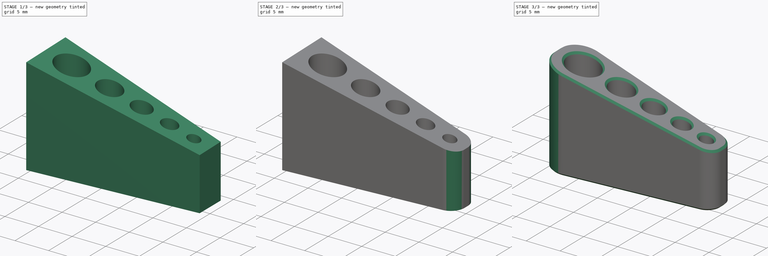
[diagram: build sequence overview — one tinted view per stage of 3, left to right]
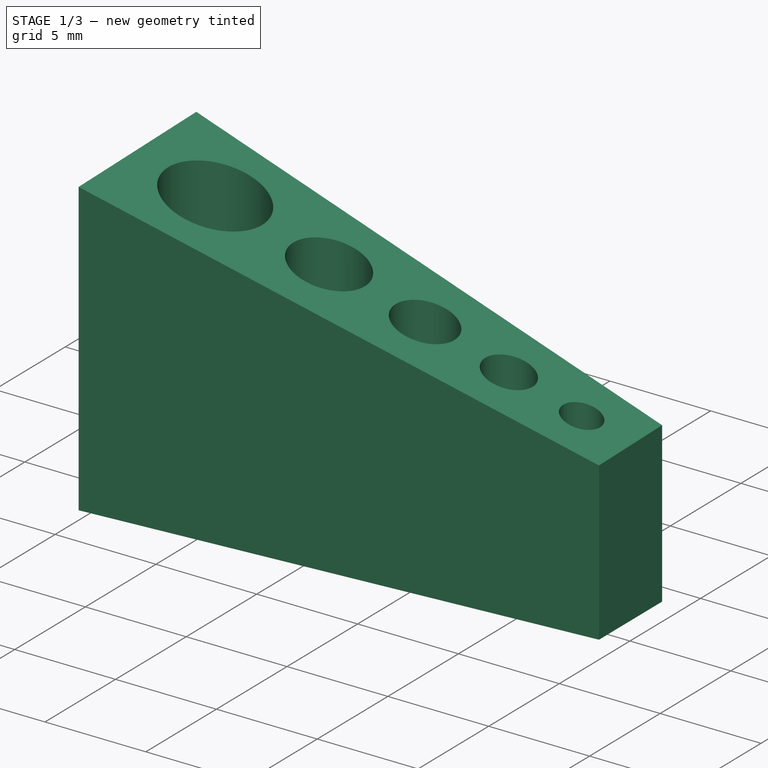
[diagram: stage 1 of 3 — iso view after this stage's code; geometry added in this stage tinted green]
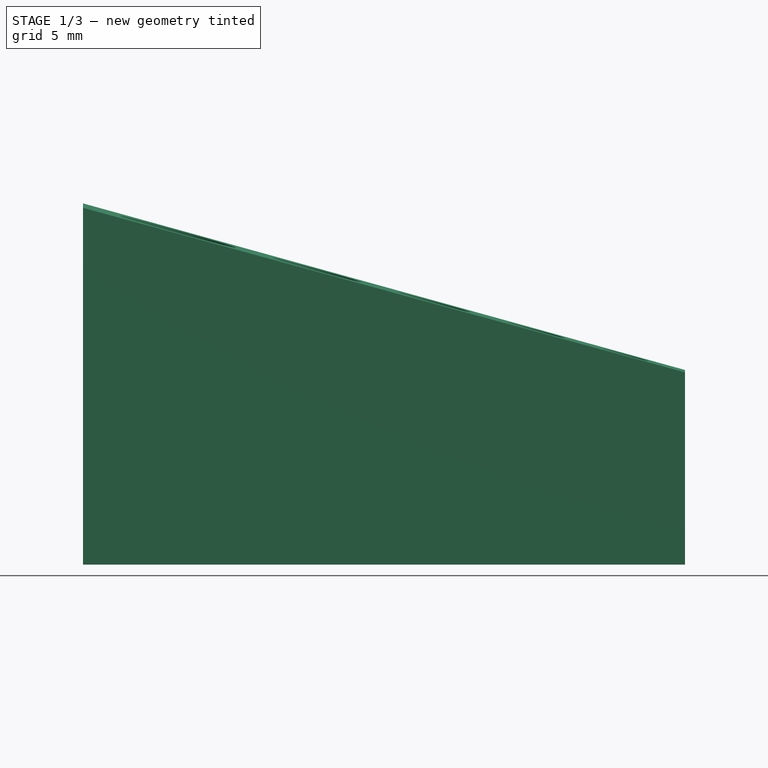
[diagram: stage 1 of 3 — front view after this stage's code; geometry added in this stage tinted green]
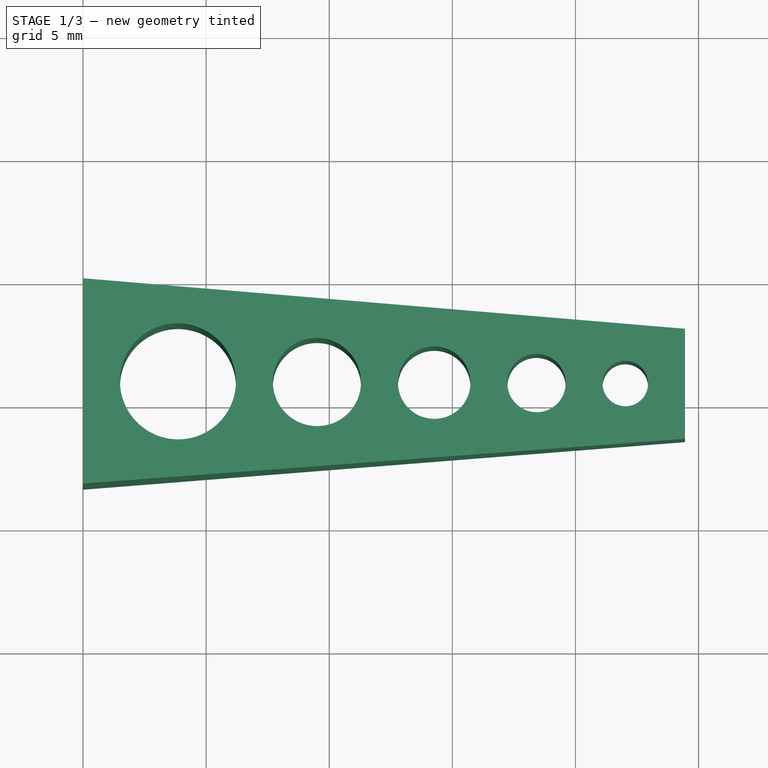
[diagram: stage 1 of 3 — top view after this stage's code; geometry added in this stage tinted green]
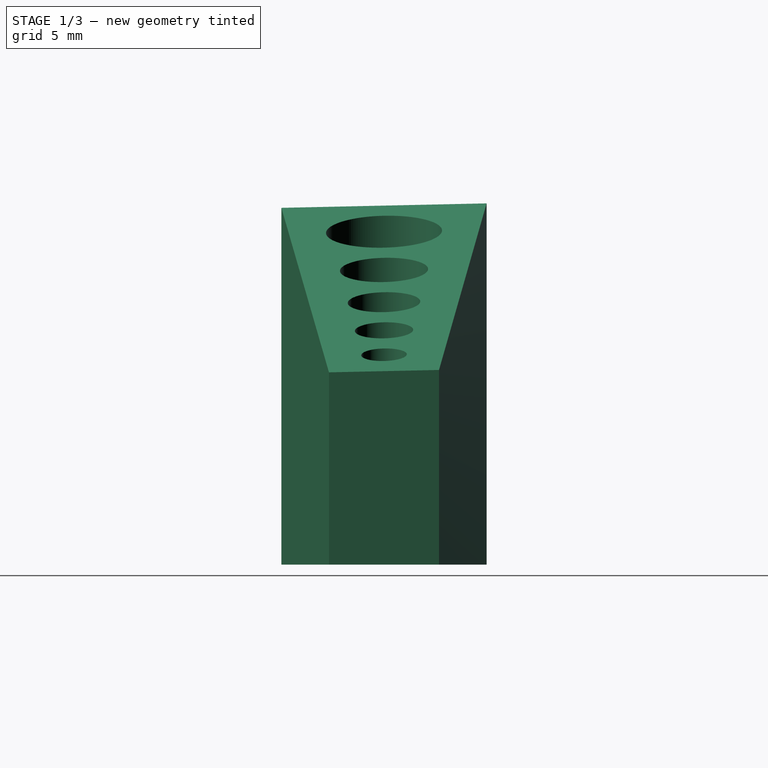
[diagram: stage 1 of 3 — right view after this stage's code; geometry added in this stage tinted green]
FCSTD DOCUMENT  (FreeCAD 0.20R29410 (Git))
Label: allen-wrench-holder
License: All rights reserved
LicenseURL: http://en.wikipedia.org/wiki/All_rights_reserved
objects: Sketcher::SketchObject×2, PartDesign::Plane×2, PartDesign::Fillet×2, PartDesign::Pad×1, PartDesign::Pocket×1, PartDesign::Chamfer×1, PartDesign::Body×1
note: 15 computed .brp shape members not serialized (recipe doc carries the construction recipe); baked Part::Feature solids carry a one-line shape summary decoded from their .brp

FEATURE [Sketcher::SketchObject] Sketch001
  FullyConstrained = true
  MapMode = 5
  Support = -> [XY_Plane]
  sketch-geometry (57):
    g0: LineSegment StartX=33.7491 StartY=-4.1677 StartZ=0 EndX=0 EndY=-4.1677 EndZ=0
    g1: Circle CenterX=3.85559 CenterY=-4.1677 CenterZ=0 NormalX=0 NormalY=0 NormalZ=1 AngleXU=0 Radius=2.35559
    g2: Circle CenterX=9.50096 CenterY=-4.1677 CenterZ=0 NormalX=0 NormalY=0 NormalZ=1 AngleXU=0 Radius=1.78979
    g3: Circle CenterX=14.263 CenterY=-4.1677 CenterZ=0 NormalX=0 NormalY=0 NormalZ=1 AngleXU=0 Radius=1.47224
    g4: Circle CenterX=18.4188 CenterY=-4.1677 CenterZ=0 NormalX=0 NormalY=0 NormalZ=1 AngleXU=0 Radius=1.18357
    g5: Circle CenterX=22.0261 CenterY=-4.1677 CenterZ=0 NormalX=0 NormalY=0 NormalZ=1 AngleXU=0 Radius=0.92376
    g6: LineSegment StartX=0 StartY=-6.83541 StartZ=0 EndX=33.7491 EndY=-4.1677 EndZ=0
    g7: GeomPoint X=6.21118 Y=-4.1677 Z=0
    g8: GeomPoint X=7.71118 Y=-4.1677 Z=0
    g9: GeomPoint X=1.5 Y=-4.1677 Z=0
    g10: GeomPoint X=11.2907 Y=-4.1677 Z=0
    g11: GeomPoint X=12.7907 Y=-4.1677 Z=0
    g12: GeomPoint X=15.7352 Y=-4.1677 Z=0
    g13: GeomPoint X=17.2352 Y=-4.1677 Z=0
    g14: GeomPoint X=19.6024 Y=-4.1677 Z=0
    g15: GeomPoint X=21.1024 Y=-4.1677 Z=0
    g16: GeomPoint X=22.9499 Y=-4.1677 Z=0
    g17: LineSegment StartX=0 StartY=-8.33541 StartZ=0 EndX=24.4499 EndY=-6.40276 EndZ=0
    g18: LineSegment StartX=0 StartY=0 StartZ=0 EndX=24.4499 EndY=-1.93265 EndZ=0
    g19: LineSegment StartX=24.4499 StartY=-6.40276 StartZ=0 EndX=24.4499 EndY=-1.93265 EndZ=0
    g20: GeomPoint X=24.4499 Y=-4.1677 Z=0
    g21: LineSegment StartX=0 StartY=-8.33541 StartZ=0 EndX=0 EndY=0 EndZ=0
    g22: LineSegment StartX=5.03338 StartY=-2.1277 StartZ=0 EndX=2.67779 EndY=-2.1277 EndZ=0
    g23: LineSegment StartX=2.67779 StartY=-2.1277 StartZ=0 EndX=1.5 EndY=-4.1677 EndZ=0
    g24: LineSegment StartX=1.5 StartY=-4.1677 StartZ=0 EndX=2.67779 EndY=-6.2077 EndZ=0
    g25: LineSegment StartX=2.67779 StartY=-6.2077 StartZ=0 EndX=5.03338 EndY=-6.2077 EndZ=0
    g26: LineSegment StartX=5.03338 StartY=-6.2077 StartZ=0 EndX=6.21118 EndY=-4.1677 EndZ=0
    g27: LineSegment StartX=6.21118 StartY=-4.1677 StartZ=0 EndX=5.03338 EndY=-2.1277 EndZ=0
    g28: Circle CenterX=3.85559 CenterY=-4.1677 CenterZ=0 NormalX=0 NormalY=0 NormalZ=1 AngleXU=0 Radius=2.35559
    g29: LineSegment StartX=8.60607 StartY=-2.6177 StartZ=0 EndX=7.71118 EndY=-4.1677 EndZ=0
    g30: LineSegment StartX=7.71118 StartY=-4.1677 StartZ=0 EndX=8.60607 EndY=-5.7177 EndZ=0
    g31: LineSegment StartX=8.60607 StartY=-5.7177 StartZ=0 EndX=10.3959 EndY=-5.7177 EndZ=0
    g32: LineSegment StartX=10.3959 StartY=-5.7177 StartZ=0 EndX=11.2907 EndY=-4.1677 EndZ=0
    g33: LineSegment StartX=11.2907 StartY=-4.1677 StartZ=0 EndX=10.3959 EndY=-2.6177 EndZ=0
    g34: LineSegment StartX=10.3959 StartY=-2.6177 StartZ=0 EndX=8.60607 EndY=-2.6177 EndZ=0
    g35: Circle CenterX=9.50096 CenterY=-4.1677 CenterZ=0 NormalX=0 NormalY=0 NormalZ=1 AngleXU=0 Radius=1.78979
    g36: LineSegment StartX=13.5269 StartY=-2.8927 StartZ=0 EndX=12.7907 EndY=-4.1677 EndZ=0
    g37: LineSegment StartX=12.7907 StartY=-4.1677 StartZ=0 EndX=13.5269 EndY=-5.4427 EndZ=0
    g38: LineSegment StartX=13.5269 StartY=-5.4427 StartZ=0 EndX=14.9991 EndY=-5.4427 EndZ=0
    g39: LineSegment StartX=14.9991 StartY=-5.4427 StartZ=0 EndX=15.7352 EndY=-4.1677 EndZ=0
    g40: LineSegment StartX=15.7352 StartY=-4.1677 StartZ=0 EndX=14.9991 EndY=-2.8927 EndZ=0
    g41: LineSegment StartX=14.9991 StartY=-2.8927 StartZ=0 EndX=13.5269 EndY=-2.8927 EndZ=0
    g42: Circle CenterX=14.263 CenterY=-4.1677 CenterZ=0 NormalX=0 NormalY=0 NormalZ=1 AngleXU=0 Radius=1.47224
    g43: LineSegment StartX=17.827 StartY=-3.1427 StartZ=0 EndX=17.2352 EndY=-4.1677 EndZ=0
    g44: LineSegment StartX=17.2352 StartY=-4.1677 StartZ=0 EndX=17.827 EndY=-5.1927 EndZ=0
    g45: LineSegment StartX=17.827 StartY=-5.1927 StartZ=0 EndX=19.0106 EndY=-5.1927 EndZ=0
    g46: LineSegment StartX=19.0106 StartY=-5.1927 StartZ=0 EndX=19.6024 EndY=-4.1677 EndZ=0
    g47: LineSegment StartX=19.6024 StartY=-4.1677 StartZ=0 EndX=19.0106 EndY=-3.1427 EndZ=0
    g48: LineSegment StartX=19.0106 StartY=-3.1427 StartZ=0 EndX=17.827 EndY=-3.1427 EndZ=0
    g49: Circle CenterX=18.4188 CenterY=-4.1677 CenterZ=0 NormalX=0 NormalY=0 NormalZ=1 AngleXU=0 Radius=1.18357
    g50: LineSegment StartX=21.5643 StartY=-3.3677 StartZ=0 EndX=21.1024 EndY=-4.1677 EndZ=0
    g51: LineSegment StartX=21.1024 StartY=-4.1677 StartZ=0 EndX=21.5643 EndY=-4.9677 EndZ=0
    g52: LineSegment StartX=21.5643 StartY=-4.9677 StartZ=0 EndX=22.488 EndY=-4.9677 EndZ=0
    g53: LineSegment StartX=22.488 StartY=-4.9677 StartZ=0 EndX=22.9499 EndY=-4.1677 EndZ=0
    g54: LineSegment StartX=22.9499 StartY=-4.1677 StartZ=0 EndX=22.488 EndY=-3.3677 EndZ=0
    g55: LineSegment StartX=22.488 StartY=-3.3677 StartZ=0 EndX=21.5643 EndY=-3.3677 EndZ=0
    g56: Circle CenterX=22.0261 CenterY=-4.1677 CenterZ=0 NormalX=0 NormalY=0 NormalZ=1 AngleXU=0 Radius=0.92376
  constraints (139):
    c: Horizontal(g0)
    c: PointOnObject(g0,g-2)
    c: PointOnObject(g1,g0)
    c: PointOnObject(g3,g0)
    c: PointOnObject(g4,g0)
    c: PointOnObject(g5,g0)
    c: Diameter(g1) = 4.71118
    c: Diameter(g2) = 3.57957
    c: Diameter(g3) = 2.94449
    c: Diameter(g4) = 2.36714
    c: Diameter(g5) = 1.84752
    c: PointOnObject(g6,g-2)
    c: Tangent(g1,g6)
    c: PointOnObject(g7,g0)
    c: PointOnObject(g8,g0)
    c: PointOnObject(g7,g1)
    c: PointOnObject(g8,g2)
    c: PointOnObject(g9,g0)
    c: PointOnObject(g9,g1)
    c: PointOnObject(g10,g0)
    c: PointOnObject(g10,g2)
    c: PointOnObject(g11,g0)
    c: PointOnObject(g11,g3)
    c: PointOnObject(g12,g0)
    c: PointOnObject(g12,g3)
    c: PointOnObject(g13,g0)
    c: PointOnObject(g14,g0)
    c: PointOnObject(g14,g4)
    c: PointOnObject(g13,g4)
    c: PointOnObject(g15,g0)
    c: PointOnObject(g16,g0)
    c: PointOnObject(g15,g5)
    c: PointOnObject(g16,g5)
    c: DistanceX(g7,g8) = 1.5
    c: DistanceX(g10,g11) = 1.5
    c: DistanceX(g12,g13) = 1.5
    c: DistanceX(g14,g15) = 1.5
    c: Tangent(g6,g5)
    c: Parallel(g6,g17)
    c: PointOnObject(g2,g0)
    c: DistanceY(g17,g6) = 1.5
    c: Symmetric(g18,g17,g0)
    c: DistanceX(g0,g9) = 1.5
    c: PointOnObject(g20,g19)
    c: PointOnObject(g20,g0)
    c: DistanceX(g16,g20) = 1.5
    c: Coincident(g18,g19)
    c: Coincident(g17,g19)
    c: Symmetric(g18,g17,g0)
    c: Coincident(g21,g17)
    c: Coincident(g21,g18)
    c: Coincident(g18,g-1)
    c: Coincident(g0,g6)
    c: Coincident(g22,g23)
    c: Coincident(g23,g24)
    c: Coincident(g24,g25)
    c: Coincident(g25,g26)
    c: Coincident(g26,g27)
    c: Coincident(g27,g22)
    c: Equal(g22, g23-g27) x5
    c: PointOnObject(g22,g28)
    c: PointOnObject(g23,g28)
    c: PointOnObject(g24,g28)
    c: PointOnObject(g25,g28)
    c: PointOnObject(g26,g28)
    c: PointOnObject(g27,g28)
    c: Coincident(g28,g1)
    c: PointOnObject(g27,g1)
    c: Horizontal(g22)
    c: DistanceY(g25,g22) = 4.08
    c: Coincident(g29,g30)
    c: Coincident(g30,g31)
    c: Coincident(g31,g32)
    c: Coincident(g32,g33)
    c: Coincident(g33,g34)
    c: Coincident(g34,g29)
    c: Equal(g29, g30-g34) x5
    c: PointOnObject(g29,g35)
    c: PointOnObject(g30,g35)
    c: PointOnObject(g31,g35)
    c: PointOnObject(g32,g35)
    c: PointOnObject(g33,g35)
    c: PointOnObject(g34,g35)
    c: Coincident(g35,g2)
    c: PointOnObject(g34,g2)
    c: Horizontal(g34)
    c: DistanceY(g31,g33) = 3.1
    c: Coincident(g36,g37)
    c: Coincident(g37,g38)
    c: Coincident(g38,g39)
    c: Coincident(g39,g40)
    c: Coincident(g40,g41)
    c: Coincident(g41,g36)
    c: Equal(g36, g37-g41) x5
    c: PointOnObject(g36,g42)
    c: PointOnObject(g37,g42)
    c: PointOnObject(g38,g42)
    c: PointOnObject(g39,g42)
    c: PointOnObject(g40,g42)
    c: PointOnObject(g41,g42)
    c: Coincident(g42,g3)
    c: PointOnObject(g41,g3)
    c: Horizontal(g41)
    c: DistanceY(g38,g40) = 2.55
    c: Coincident(g43,g44)
    c: Coincident(g44,g45)
    c: Coincident(g45,g46)
    c: Coincident(g46,g47)
    c: Coincident(g47,g48)
    c: Coincident(g48,g43)
    c: Equal(g43, g44-g48) x5
    c: PointOnObject(g43,g49)
    c: PointOnObject(g44,g49)
    c: PointOnObject(g45,g49)
    c: PointOnObject(g46,g49)
    c: PointOnObject(g47,g49)
    c: PointOnObject(g48,g49)
    c: Coincident(g49,g4)
    c: PointOnObject(g48,g4)
    c: Horizontal(g48)
    c: DistanceY(g45,g47) = 2.05
    c: Coincident(g50,g51)
    c: Coincident(g51,g52)
    c: Coincident(g52,g53)
    c: Coincident(g53,g54)
    c: Coincident(g54,g55)
    c: Coincident(g55,g50)
    c: Equal(g50, g51-g55) x5
    c: PointOnObject(g50,g56)
    c: PointOnObject(g51,g56)
    c: PointOnObject(g52,g56)
    c: PointOnObject(g53,g56)
    c: PointOnObject(g54,g56)
    c: PointOnObject(g55,g56)
    c: Coincident(g56,g5)
    c: PointOnObject(g55,g5)
    c: Horizontal(g55)
    c: DistanceY(g52,g54) = 1.6
    c: DistanceX(g18,g18) = 24.4499
FEATURE [PartDesign::Pad] Pad
  Direction = (0,0,1)
  Length = 15
  Length2 = 100
  Profile = -> Sketch001
  Type = 0
FEATURE [PartDesign::Plane] DatumPlane
  Length = 64.156
  MapMode = 5
  Placement = pos=(0,0,0) rot=(0.027892,0.706832,0.706832;3.08582rad)
  ResizeMode = 0
  Support = -> [Pad]
  Width = 60.3715
FEATURE [Sketcher::SketchObject] Sketch002
  FullyConstrained = true
  MapMode = 5
  Placement = pos=(0,0,0) rot=(0.027892,0.706832,0.706832;3.08582rad)
  Support = -> [DatumPlane]
  sketch-geometry (3):
    g0: LineSegment StartX=-26 StartY=15.5 StartZ=0 EndX=-26 EndY=7.5 EndZ=0
    g1: LineSegment StartX=-26 StartY=7.5 StartZ=0 EndX=3 EndY=15.5 EndZ=0
    g2: LineSegment StartX=3 StartY=15.5 StartZ=0 EndX=-26 EndY=15.5 EndZ=0
  constraints (9):
    c: Coincident(g0,g1)
    c: Coincident(g1,g2)
    c: Coincident(g2,g0)
    c: Perpendicular(g0,g2)
    c: Vertical(g0)
    c: DistanceY(g0,g0) = 8
    c: DistanceX(g2,g2) = 29
    c: DistanceX(g-1,g1) = 3
    c: DistanceY(g-1,g1) = 15.5
FEATURE [PartDesign::Pocket] Pocket
  BaseFeature = -> Pad
  Direction = (-0.0787994,-0.99689,0)
  Length = 5
  Length2 = 100
  Midplane = true
  Profile = -> Sketch002
  Type = 1
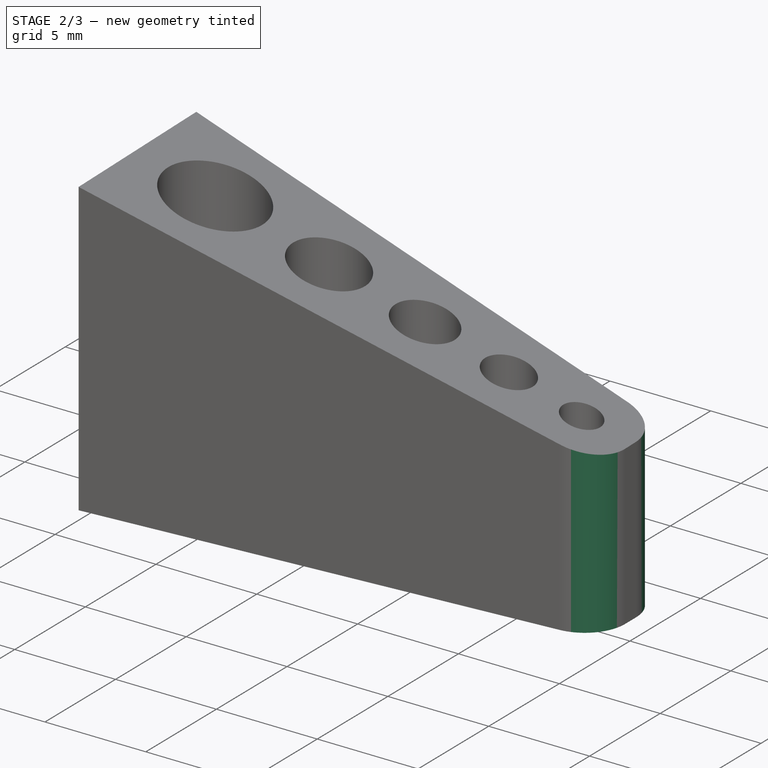
[diagram: stage 2 of 3 — iso view after this stage's code; geometry added in this stage tinted green]
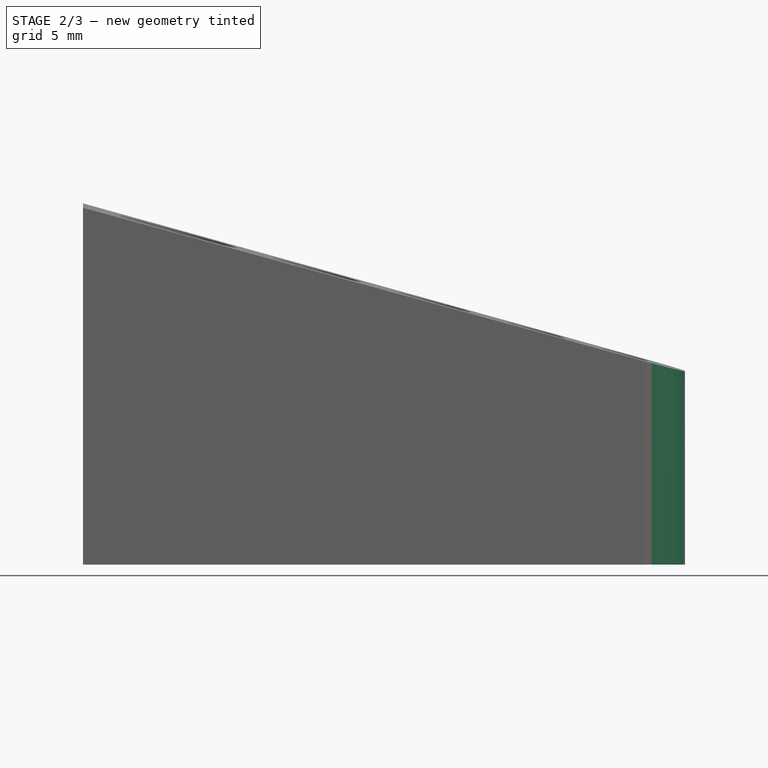
[diagram: stage 2 of 3 — front view after this stage's code; geometry added in this stage tinted green]
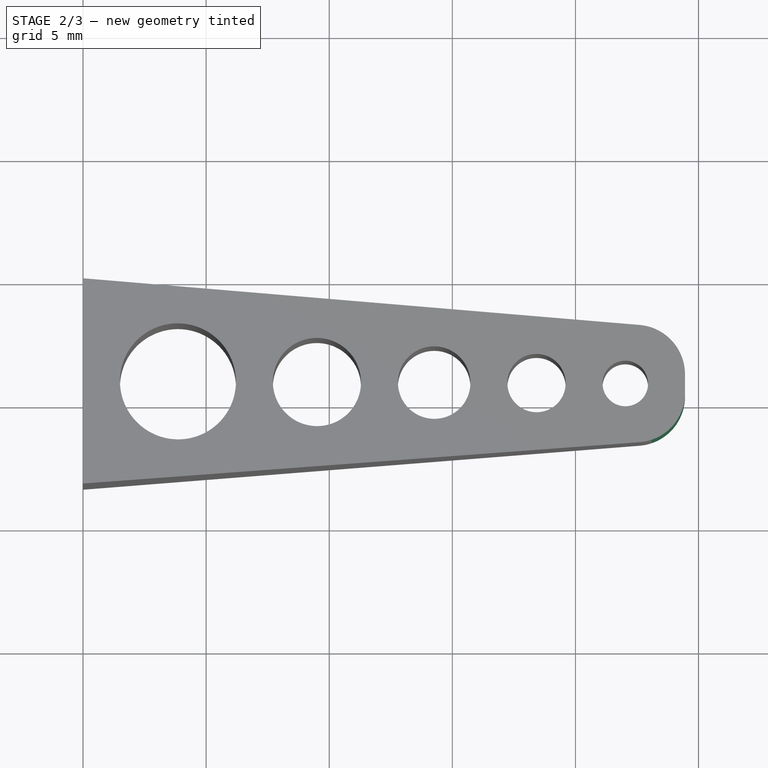
[diagram: stage 2 of 3 — top view after this stage's code; geometry added in this stage tinted green]
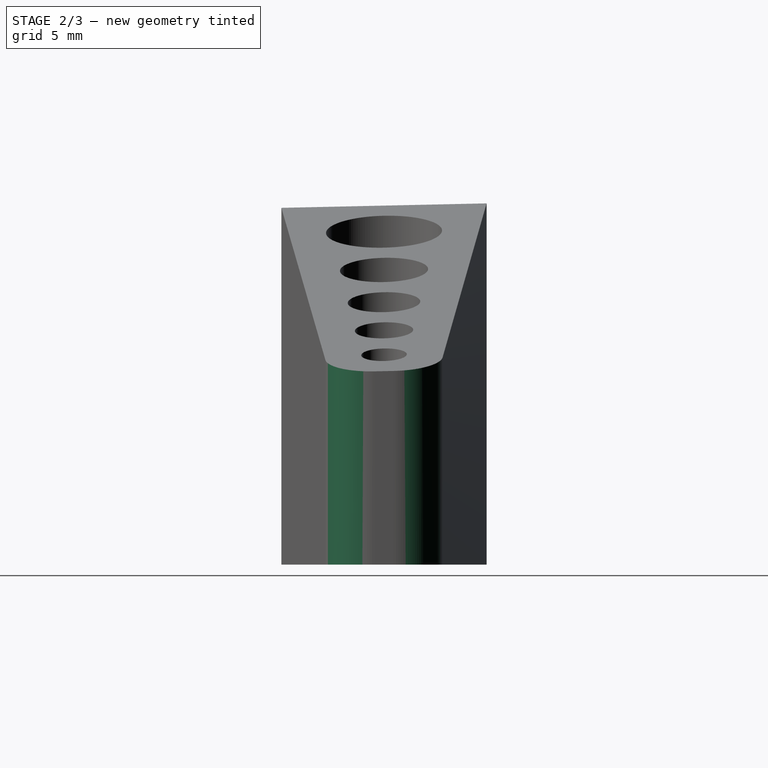
[diagram: stage 2 of 3 — right view after this stage's code; geometry added in this stage tinted green]
FEATURE [PartDesign::Fillet] Fillet
  Base = -> Pocket [Edge2,Edge13]
  BaseFeature = -> Pocket
  Radius = 2
  SupportTransform = false
  UseAllEdges = false
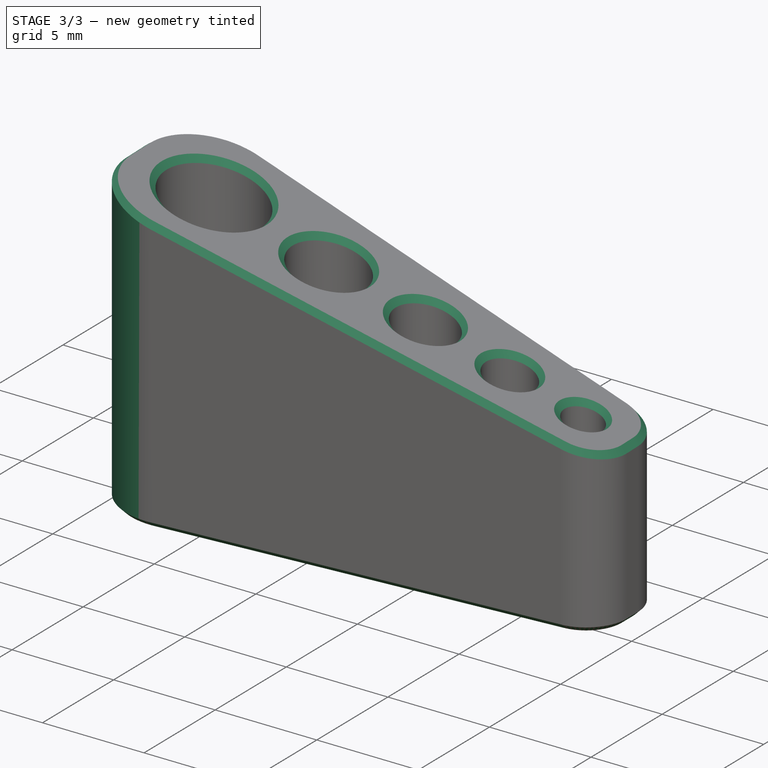
[diagram: stage 3 of 3 — iso view after this stage's code; geometry added in this stage tinted green]
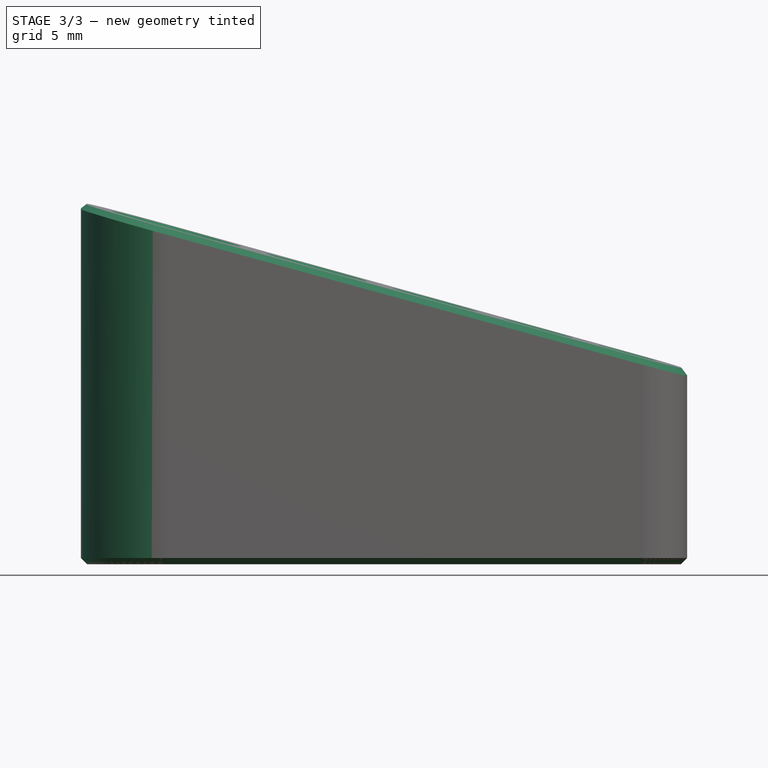
[diagram: stage 3 of 3 — front view after this stage's code; geometry added in this stage tinted green]
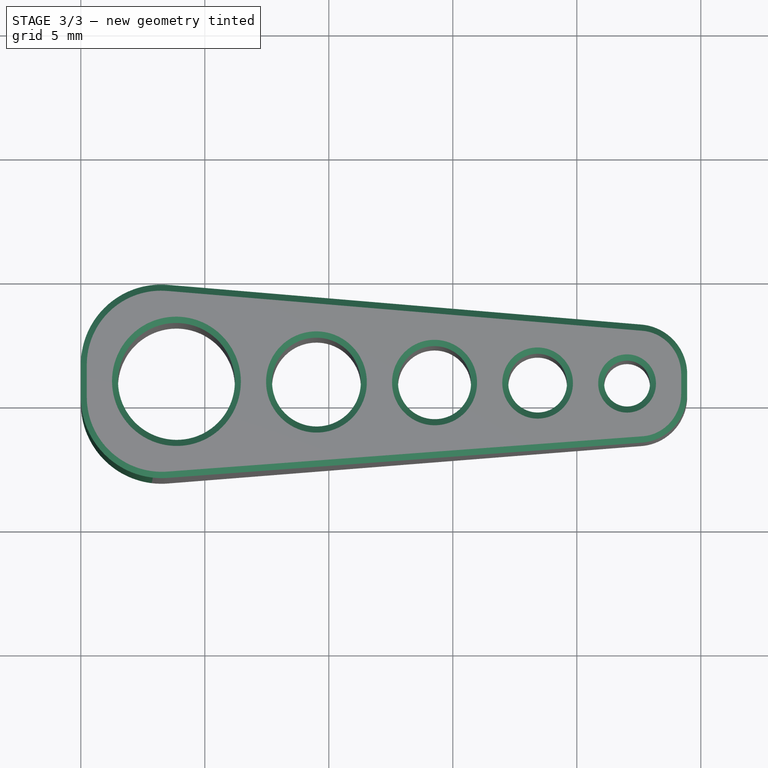
[diagram: stage 3 of 3 — top view after this stage's code; geometry added in this stage tinted green]
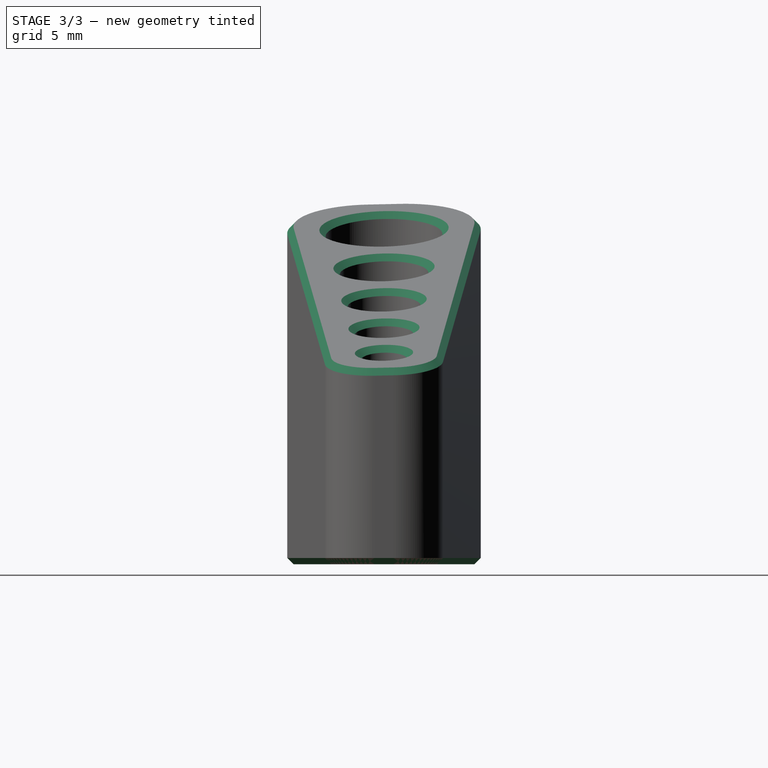
[diagram: stage 3 of 3 — right view after this stage's code; geometry added in this stage tinted green]
FEATURE [PartDesign::Fillet] Fillet001
  Base = -> Fillet [Edge3,Edge17]
  BaseFeature = -> Fillet
  Radius = 3.25
  SupportTransform = false
  UseAllEdges = false
FEATURE [PartDesign::Chamfer] Chamfer
  Angle = 45
  Base = -> Fillet001 [Edge11,Edge21,Edge28,Edge29,Edge27,Edge30,Edge26,Edge16,Edge15,Edge14,Edge13,Edge12]
  BaseFeature = -> Fillet001
  ChamferType = 0
  FlipDirection = false
  Size = 0.25
  Size2 = 1
  SupportTransform = false
  UseAllEdges = false
FEATURE [PartDesign::Plane] DatumPlane001  label="PrintPlane"
  Length = 60
  MapMode = 5
  Placement = pos=(0,0,0) rot=(1,0,0;3.14159rad)
  ResizeMode = 0
  Support = -> [Chamfer]
  Width = 60
FEATURE [PartDesign::Body] Body
  Group = -> [Sketch001,Pad,DatumPlane,Sketch002,Pocket,Fillet,Fillet001,Chamfer,DatumPlane001]
  Origin = -> Origin
  Tip = -> Chamfer
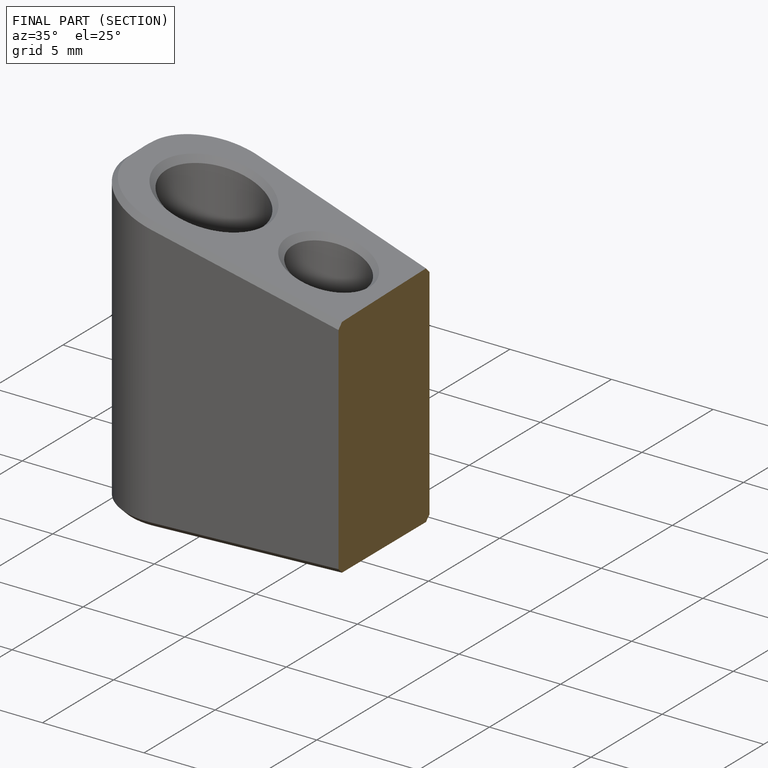
[diagram: finished part — half-section view (interior)]
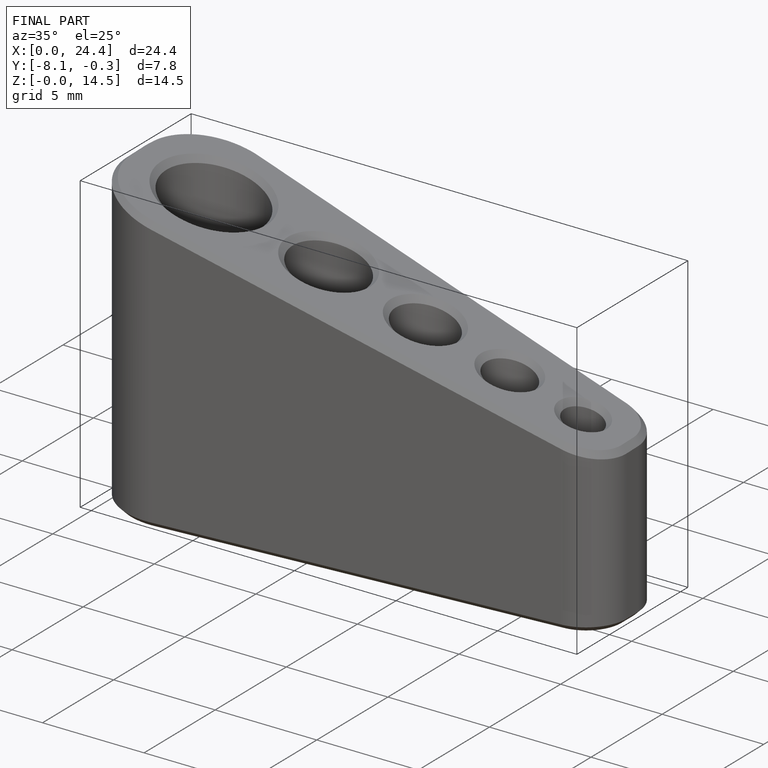
[diagram: finished part — iso view with bounding-box wireframe]
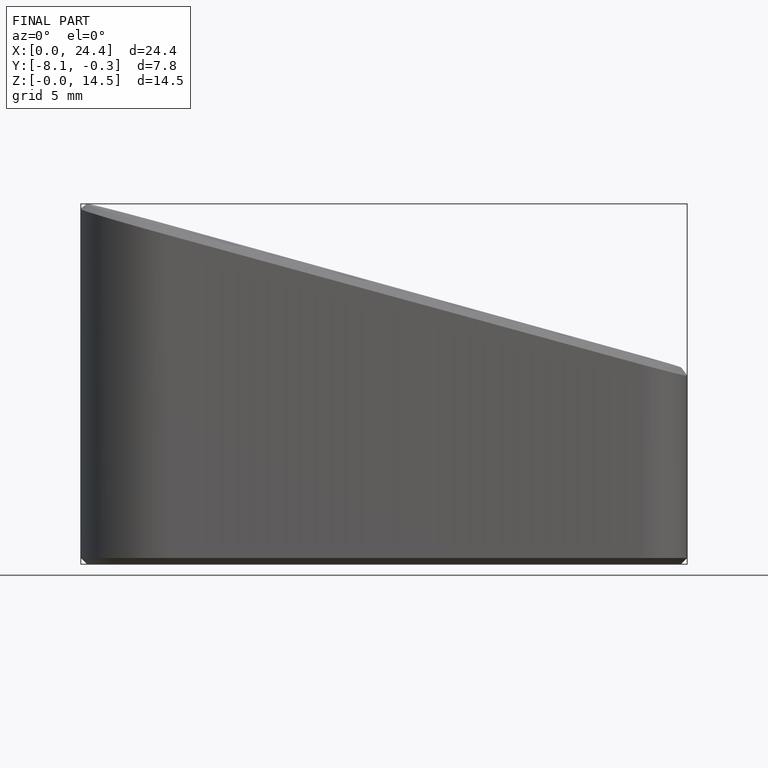
[diagram: finished part — front view with bounding-box wireframe]
